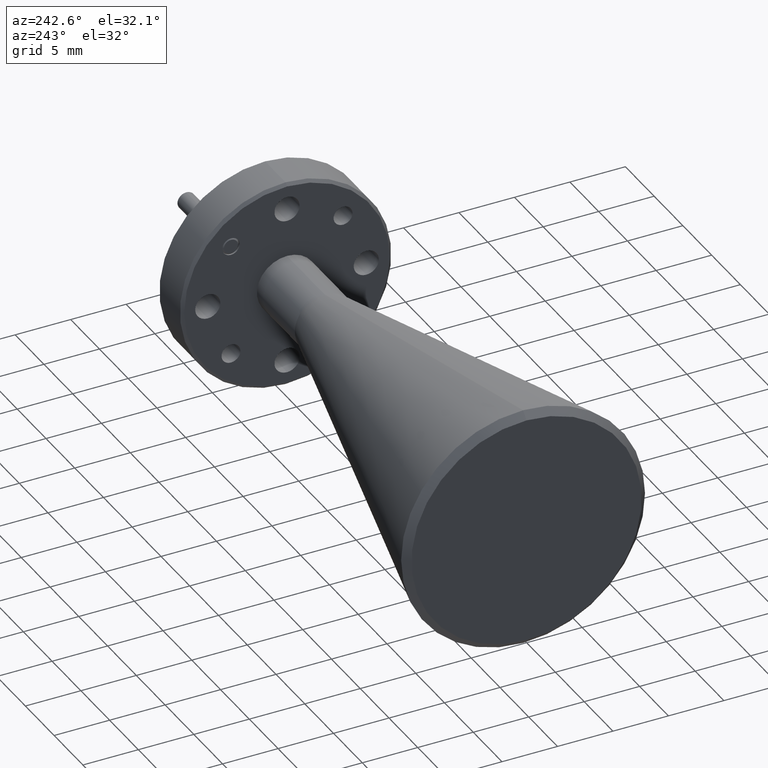
[diagram: clean part render]
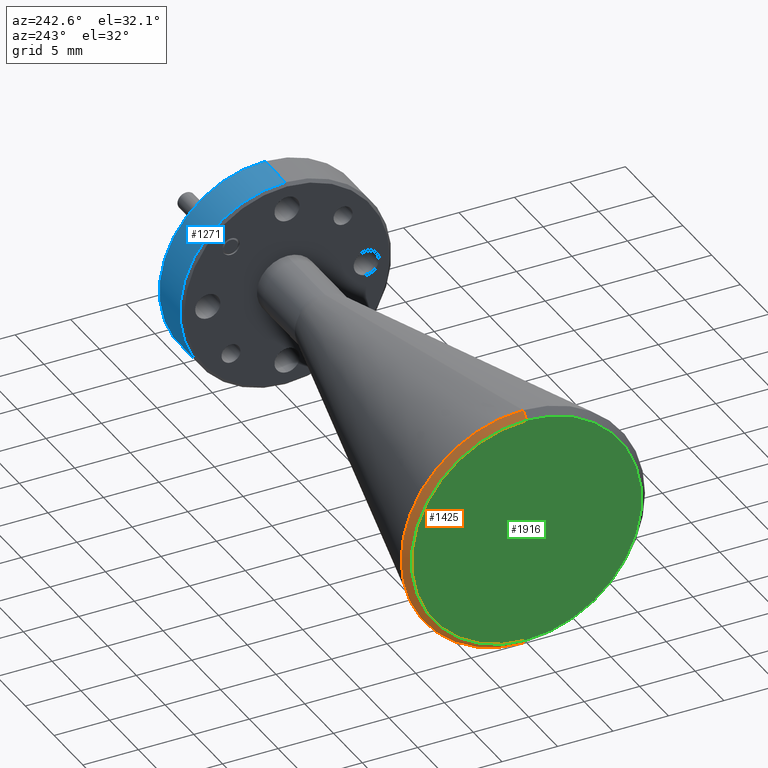
[diagram: same view with three faces highlighted in distinct colors, each labeled with its STEP entity id]
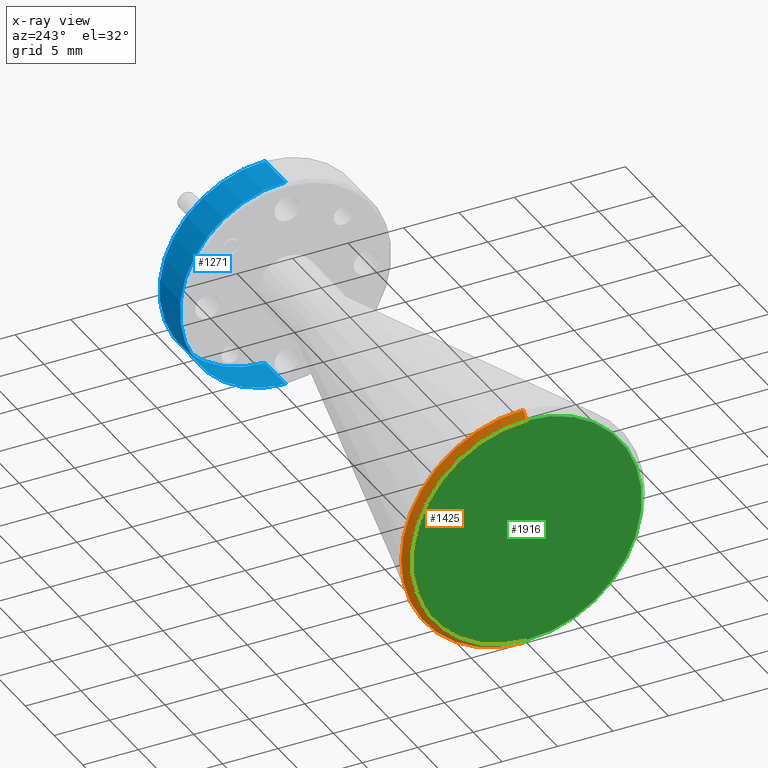
[diagram: x-ray of the same camera — body ghosted, the three highlighted faces saturated]
A machine part, auxiliary view with three faces highlighted in distinct colors.
The next image is the same camera in x-ray (body ghosted, the three faces saturated) — at least one of them is partly hidden behind the body in this view.
Their STEP definitions:

[orange] entity #1425 — the highlighted conical surface has half-angle 45 deg.
#90 = EDGE_LOOP ( 'NONE', ( #722, #1987, #1152, #1143 ) ) ;
#122 = CONICAL_SURFACE ( 'NONE', #1875, 0.4326920118220987099, 0.7853981633974399523 ) ;
#157 = CARTESIAN_POINT ( 'NONE',  ( -6.958961933510678044, 1.217303930725912142, 2.370213308989429724 ) ) ;
#173 = EDGE_CURVE ( 'NONE', #1799, #1724, #951, .T. ) ;
#186 = VECTOR ( 'NONE', #2017, 39.37007874015748143 ) ;
#249 = CIRCLE ( 'NONE', #1785, 0.4084999999999991971 ) ;
#297 = CARTESIAN_POINT ( 'NONE',  ( -6.934769921688578087, 1.217303930725912142, 2.802905320811528433 ) ) ;
#348 = DIRECTION ( 'NONE',  ( 0.7071067811865535679, 0.000000000000000000, -0.7071067811865415775 ) ) ;
#564 = LINE ( 'NONE', #1826, #186 ) ;
#609 = DIRECTION ( 'NONE',  ( 0.000000000000000000, 0.000000000000000000, -1.000000000000000000 ) ) ;
#714 = DIRECTION ( 'NONE',  ( 0.000000000000000000, 0.000000000000000000, 1.000000000000000000 ) ) ;
#722 = ORIENTED_EDGE ( 'NONE', *, *, #2152, .F. ) ;
#806 = CARTESIAN_POINT ( 'NONE',  ( -6.934769921688578087, 1.217303930725912142, 2.370213308989429724 ) ) ;
#861 = CARTESIAN_POINT ( 'NONE',  ( -6.934769921688578975, 1.217303930725912142, 1.937521297167331014 ) ) ;
#888 = LINE ( 'NONE', #861, #1424 ) ;
#951 = CIRCLE ( 'NONE', #1314, 0.4326920118220987099 ) ;
#980 = VERTEX_POINT ( 'NONE', #1570 ) ;
#983 = FACE_OUTER_BOUND ( 'NONE', #90, .T. ) ;
#1143 = ORIENTED_EDGE ( 'NONE', *, *, #1839, .F. ) ;
#1152 = ORIENTED_EDGE ( 'NONE', *, *, #173, .F. ) ;
#1202 = DIRECTION ( 'NONE',  ( 1.000000000000000000, -0.000000000000000000, -0.000000000000000000 ) ) ;
#1314 = AXIS2_PLACEMENT_3D ( 'NONE', #806, #1202, #609 ) ;
#1329 = CARTESIAN_POINT ( 'NONE',  ( -6.934769921688578975, 1.217303930725912142, 2.370213308989429724 ) ) ;
#1420 = DIRECTION ( 'NONE',  ( -1.000000000000000000, 0.000000000000000000, 0.000000000000000000 ) ) ;
#1424 = VECTOR ( 'NONE', #348, 39.37007874015748143 ) ;
#1425 = ADVANCED_FACE ( 'NONE', ( #983 ), #122, .T. ) ;
#1536 = VERTEX_POINT ( 'NONE', #1763 ) ;
#1570 = CARTESIAN_POINT ( 'NONE',  ( -6.958961933510678044, 1.217303930725912142, 1.961713308989430304 ) ) ;
#1724 = VERTEX_POINT ( 'NONE', #297 ) ;
#1763 = CARTESIAN_POINT ( 'NONE',  ( -6.958961933510678044, 1.217303930725912142, 2.778713308989428921 ) ) ;
#1785 = AXIS2_PLACEMENT_3D ( 'NONE', #157, #1420, #714 ) ;
#1799 = VERTEX_POINT ( 'NONE', #2301 ) ;
#1826 = CARTESIAN_POINT ( 'NONE',  ( -6.934769921688578975, 1.217303930725912142, 2.802905320811528433 ) ) ;
#1839 = EDGE_CURVE ( 'NONE', #980, #1799, #888, .T. ) ;
#1875 = AXIS2_PLACEMENT_3D ( 'NONE', #1329, #1882, #2061 ) ;
#1882 = DIRECTION ( 'NONE',  ( 1.000000000000000000, -0.000000000000000000, -0.000000000000000000 ) ) ;
#1987 = ORIENTED_EDGE ( 'NONE', *, *, #2279, .T. ) ;
#2017 = DIRECTION ( 'NONE',  ( 0.7071067811865535679, 8.659560562354860135E-17, 0.7071067811865415775 ) ) ;
#2061 = DIRECTION ( 'NONE',  ( 0.000000000000000000, 0.000000000000000000, -1.000000000000000000 ) ) ;
#2152 = EDGE_CURVE ( 'NONE', #1536, #980, #249, .T. ) ;
#2279 = EDGE_CURVE ( 'NONE', #1536, #1724, #564, .T. ) ;
#2301 = CARTESIAN_POINT ( 'NONE',  ( -6.934769921688578087, 1.217303930725912142, 1.937521297167331014 ) ) ;

[blue] entity #1271 — the highlighted cylindrical surface (partial cylindrical patch) has radius 9.525 mm, axis along (1, -0, -0).
#32 = CARTESIAN_POINT ( 'NONE',  ( -5.168961933510677120, 1.217303930725912142, 1.995213308989429724 ) ) ;
#34 = DIRECTION ( 'NONE',  ( 1.000000000000000000, -0.000000000000000000, -0.000000000000000000 ) ) ;
#80 = FACE_OUTER_BOUND ( 'NONE', #1824, .T. ) ;
#89 = EDGE_CURVE ( 'NONE', #1812, #2124, #768, .T. ) ;
#93 = DIRECTION ( 'NONE',  ( -1.000000000000000000, 0.000000000000000000, 0.000000000000000000 ) ) ;
#352 = AXIS2_PLACEMENT_3D ( 'NONE', #1541, #93, #868 ) ;
#391 = ORIENTED_EDGE ( 'NONE', *, *, #396, .F. ) ;
#396 = EDGE_CURVE ( 'NONE', #498, #2239, #872, .T. ) ;
#498 = VERTEX_POINT ( 'NONE', #931 ) ;
#692 = DIRECTION ( 'NONE',  ( 1.000000000000000000, -0.000000000000000000, -0.000000000000000000 ) ) ;
#759 = VECTOR ( 'NONE', #2185, 39.37007874015748143 ) ;
#768 = LINE ( 'NONE', #1652, #759 ) ;
#778 = DIRECTION ( 'NONE',  ( 0.000000000000000000, 0.000000000000000000, 1.000000000000000000 ) ) ;
#868 = DIRECTION ( 'NONE',  ( 0.000000000000000000, 0.000000000000000000, -1.000000000000000000 ) ) ;
#872 = LINE ( 'NONE', #2310, #1654 ) ;
#931 = CARTESIAN_POINT ( 'NONE',  ( -5.308961933510678577, 1.217303930725912142, 1.995213308989429724 ) ) ;
#967 = AXIS2_PLACEMENT_3D ( 'NONE', #1133, #34, #2036 ) ;
#1039 = CARTESIAN_POINT ( 'NONE',  ( -5.308961933510678577, 1.217303930725912142, 2.745213308989430168 ) ) ;
#1133 = CARTESIAN_POINT ( 'NONE',  ( -5.158961933510678222, 1.217303930725912142, 2.370213308989429724 ) ) ;
#1271 = ADVANCED_FACE ( 'NONE', ( #80 ), #1855, .T. ) ;
#1287 = EDGE_CURVE ( 'NONE', #498, #1812, #1912, .T. ) ;
#1342 = ORIENTED_EDGE ( 'NONE', *, *, #1544, .T. ) ;
#1460 = CIRCLE ( 'NONE', #352, 0.3749999999999999445 ) ;
#1523 = AXIS2_PLACEMENT_3D ( 'NONE', #2234, #1660, #778 ) ;
#1541 = CARTESIAN_POINT ( 'NONE',  ( -5.168961933510677120, 1.217303930725912142, 2.370213308989429724 ) ) ;
#1544 = EDGE_CURVE ( 'NONE', #2124, #2239, #1460, .T. ) ;
#1598 = ORIENTED_EDGE ( 'NONE', *, *, #1287, .T. ) ;
#1652 = CARTESIAN_POINT ( 'NONE',  ( -5.158961933510678222, 1.217303930725912142, 2.745213308989430168 ) ) ;
#1654 = VECTOR ( 'NONE', #692, 39.37007874015748143 ) ;
#1660 = DIRECTION ( 'NONE',  ( 1.000000000000000000, -0.000000000000000000, -0.000000000000000000 ) ) ;
#1766 = CARTESIAN_POINT ( 'NONE',  ( -5.168961933510677120, 1.217303930725912142, 2.745213308989430168 ) ) ;
#1812 = VERTEX_POINT ( 'NONE', #1039 ) ;
#1824 = EDGE_LOOP ( 'NONE', ( #1598, #2216, #1342, #391 ) ) ;
#1855 = CYLINDRICAL_SURFACE ( 'NONE', #967, 0.3749999999999999445 ) ;
#1912 = CIRCLE ( 'NONE', #1523, 0.3750000000000002220 ) ;
#2036 = DIRECTION ( 'NONE',  ( 0.000000000000000000, 0.000000000000000000, -1.000000000000000000 ) ) ;
#2124 = VERTEX_POINT ( 'NONE', #1766 ) ;
#2185 = DIRECTION ( 'NONE',  ( 1.000000000000000000, -0.000000000000000000, -0.000000000000000000 ) ) ;
#2216 = ORIENTED_EDGE ( 'NONE', *, *, #89, .T. ) ;
#2234 = CARTESIAN_POINT ( 'NONE',  ( -5.308961933510678577, 1.217303930725912142, 2.370213308989429724 ) ) ;
#2239 = VERTEX_POINT ( 'NONE', #32 ) ;
#2310 = CARTESIAN_POINT ( 'NONE',  ( -5.158961933510678222, 1.217303930725912142, 1.995213308989429724 ) ) ;

[green] entity #1916 — the highlighted planar face has unit normal (-1, 0, 0).
#116 = CARTESIAN_POINT ( 'NONE',  ( -6.958961933510678044, 1.217303930725912142, 2.370213308989429724 ) ) ;
#153 = DIRECTION ( 'NONE',  ( 0.000000000000000000, 0.000000000000000000, 1.000000000000000000 ) ) ;
#157 = CARTESIAN_POINT ( 'NONE',  ( -6.958961933510678044, 1.217303930725912142, 2.370213308989429724 ) ) ;
#191 = DIRECTION ( 'NONE',  ( -1.000000000000000000, 0.000000000000000000, 0.000000000000000000 ) ) ;
#249 = CIRCLE ( 'NONE', #1785, 0.4084999999999991971 ) ;
#551 = FACE_OUTER_BOUND ( 'NONE', #918, .T. ) ;
#714 = DIRECTION ( 'NONE',  ( 0.000000000000000000, 0.000000000000000000, 1.000000000000000000 ) ) ;
#745 = EDGE_CURVE ( 'NONE', #980, #1536, #2265, .T. ) ;
#843 = DIRECTION ( 'NONE',  ( -1.000000000000000000, 0.000000000000000000, 0.000000000000000000 ) ) ;
#918 = EDGE_LOOP ( 'NONE', ( #1943, #1169 ) ) ;
#980 = VERTEX_POINT ( 'NONE', #1570 ) ;
#1113 = DIRECTION ( 'NONE',  ( 0.000000000000000000, 0.000000000000000000, 1.000000000000000000 ) ) ;
#1135 = AXIS2_PLACEMENT_3D ( 'NONE', #116, #843, #153 ) ;
#1169 = ORIENTED_EDGE ( 'NONE', *, *, #2152, .T. ) ;
#1270 = PLANE ( 'NONE',  #2108 ) ;
#1420 = DIRECTION ( 'NONE',  ( -1.000000000000000000, 0.000000000000000000, 0.000000000000000000 ) ) ;
#1536 = VERTEX_POINT ( 'NONE', #1763 ) ;
#1570 = CARTESIAN_POINT ( 'NONE',  ( -6.958961933510678044, 1.217303930725912142, 1.961713308989430304 ) ) ;
#1632 = CARTESIAN_POINT ( 'NONE',  ( -6.958961933510678044, 1.655803930725912032, 2.370213308989429724 ) ) ;
#1763 = CARTESIAN_POINT ( 'NONE',  ( -6.958961933510678044, 1.217303930725912142, 2.778713308989428921 ) ) ;
#1785 = AXIS2_PLACEMENT_3D ( 'NONE', #157, #1420, #714 ) ;
#1916 = ADVANCED_FACE ( 'NONE', ( #551 ), #1270, .T. ) ;
#1943 = ORIENTED_EDGE ( 'NONE', *, *, #745, .T. ) ;
#2108 = AXIS2_PLACEMENT_3D ( 'NONE', #1632, #191, #1113 ) ;
#2152 = EDGE_CURVE ( 'NONE', #1536, #980, #249, .T. ) ;
#2265 = CIRCLE ( 'NONE', #1135, 0.4084999999999991971 ) ;